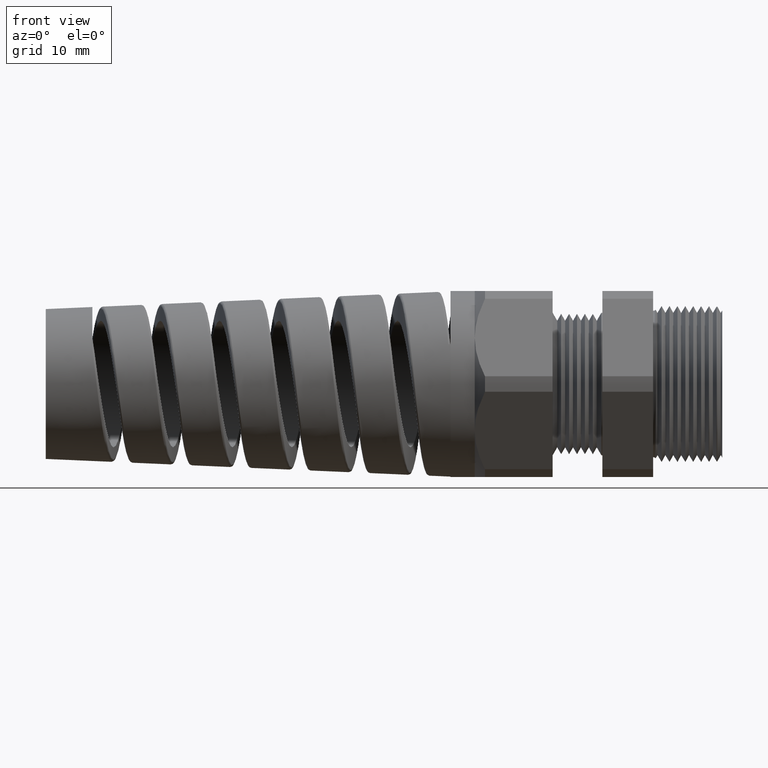
[diagram: clean part render]
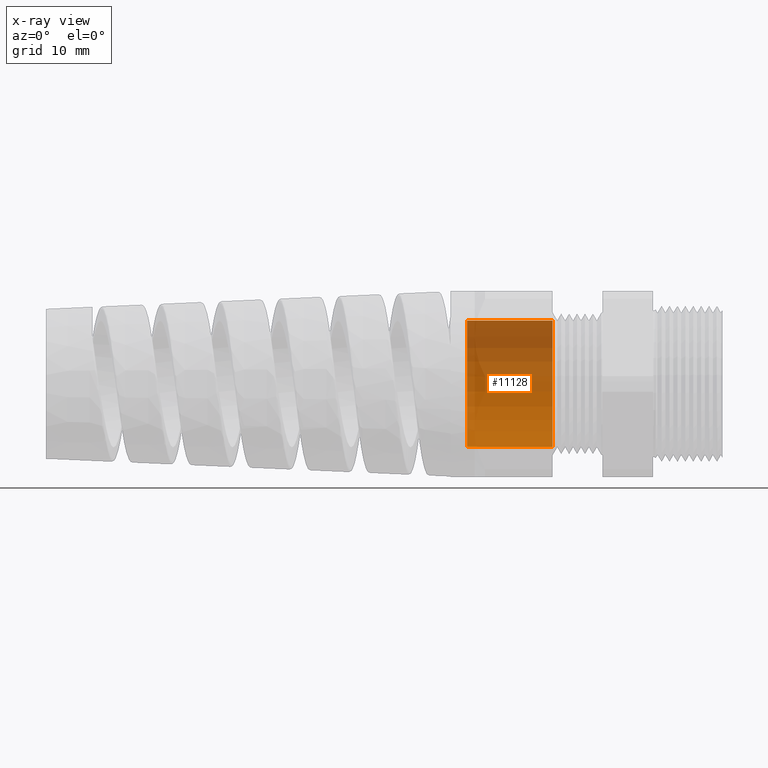
[diagram: x-ray — body ghosted, one internal face saturated and labeled with its STEP entity id]
A machine part, front view, then the same camera in x-ray: the body is ghosted and one INTERNAL B-rep face — a face not visible from any outside direction — is saturated and labeled: STEP entity #11128.
In plain terms, the highlighted cylindrical surface (partial cylindrical patch) has radius 8.128 mm, axis along (1, 0, 0).
Its self-contained STEP definition (entity closure, byte-faithful):
#7919 = CYLINDRICAL_SURFACE ( 'NONE', #7920, 0.3200000000000000100 ) ;
#7920 = AXIS2_PLACEMENT_3D ( 'NONE', #7976, #7975, #7974 ) ;
#7921 = FACE_OUTER_BOUND ( 'NONE', #11132, .T. ) ;
#7922 = DIRECTION ( 'NONE',  ( 1.000000000000000000, 0.0000000000000000000, 0.0000000000000000000 ) ) ;
#7923 = VECTOR ( 'NONE', #7922, 39.37007874015748100 ) ;
#7924 = CARTESIAN_POINT ( 'NONE',  ( 0.09602717987635048200, 3.918869757271530800E-017, 0.3200000000000000100 ) ) ;
#7925 = LINE ( 'NONE', #7924, #7923 ) ;
#7946 = CARTESIAN_POINT ( 'NONE',  ( -1.250000000000000200, 3.918869757271529600E-017, 0.3199999999999999500 ) ) ;
#7957 = CARTESIAN_POINT ( 'NONE',  ( -1.250000000000000200, 0.0000000000000000000, -0.3199999999999999500 ) ) ;
#7964 = CARTESIAN_POINT ( 'NONE',  ( -0.8175590551181102200, 3.918869757271530800E-017, 0.3200000000000000100 ) ) ;
#7965 = DIRECTION ( 'NONE',  ( 0.0000000000000000000, 0.0000000000000000000, -1.000000000000000000 ) ) ;
#7966 = DIRECTION ( 'NONE',  ( 1.000000000000000000, 0.0000000000000000000, 0.0000000000000000000 ) ) ;
#7967 = CARTESIAN_POINT ( 'NONE',  ( -0.8175590551181102200, 0.0000000000000000000, 0.0000000000000000000 ) ) ;
#7968 = AXIS2_PLACEMENT_3D ( 'NONE', #7967, #7966, #7965 ) ;
#7969 = CIRCLE ( 'NONE', #7968, 0.3200000000000000100 ) ;
#7974 = DIRECTION ( 'NONE',  ( 0.0000000000000000000, 0.0000000000000000000, -1.000000000000000000 ) ) ;
#7975 = DIRECTION ( 'NONE',  ( 1.000000000000000000, 0.0000000000000000000, 0.0000000000000000000 ) ) ;
#7976 = CARTESIAN_POINT ( 'NONE',  ( 0.09602717987635048200, 0.0000000000000000000, 0.0000000000000000000 ) ) ;
#8007 = DIRECTION ( 'NONE',  ( 0.0000000000000000000, 0.0000000000000000000, -1.000000000000000000 ) ) ;
#8008 = DIRECTION ( 'NONE',  ( 1.000000000000000000, 0.0000000000000000000, 0.0000000000000000000 ) ) ;
#8009 = CARTESIAN_POINT ( 'NONE',  ( -1.250000000000000200, 0.0000000000000000000, 0.0000000000000000000 ) ) ;
#8010 = AXIS2_PLACEMENT_3D ( 'NONE', #8009, #8008, #8007 ) ;
#8011 = CIRCLE ( 'NONE', #8010, 0.3199999999999999500 ) ;
#8019 = CARTESIAN_POINT ( 'NONE',  ( -0.8175590551181102200, 0.0000000000000000000, -0.3200000000000000100 ) ) ;
#8020 = DIRECTION ( 'NONE',  ( 1.000000000000000000, 0.0000000000000000000, 0.0000000000000000000 ) ) ;
#8021 = VECTOR ( 'NONE', #8020, 39.37007874015748100 ) ;
#8022 = CARTESIAN_POINT ( 'NONE',  ( 0.09602717987635048200, 0.0000000000000000000, -0.3200000000000000100 ) ) ;
#8023 = LINE ( 'NONE', #8022, #8021 ) ;
#11127 = EDGE_CURVE ( 'NONE', #11145, #11135, #7925, .T. ) ;
#11128 = ADVANCED_FACE ( 'NONE', ( #7921 ), #7919, .T. ) ;
#11131 = ORIENTED_EDGE ( 'NONE', *, *, #11127, .T. ) ;
#11132 = EDGE_LOOP ( 'NONE', ( #11134, #11131, #11137, #11168 ) ) ;
#11133 = EDGE_CURVE ( 'NONE', #11177, #11135, #7969, .T. ) ;
#11134 = ORIENTED_EDGE ( 'NONE', *, *, #11148, .T. ) ;
#11135 = VERTEX_POINT ( 'NONE', #7964 ) ;
#11137 = ORIENTED_EDGE ( 'NONE', *, *, #11133, .F. ) ;
#11138 = VERTEX_POINT ( 'NONE', #7957 ) ;
#11145 = VERTEX_POINT ( 'NONE', #7946 ) ;
#11148 = EDGE_CURVE ( 'NONE', #11138, #11145, #8011, .T. ) ;
#11168 = ORIENTED_EDGE ( 'NONE', *, *, #11171, .F. ) ;
#11171 = EDGE_CURVE ( 'NONE', #11138, #11177, #8023, .T. ) ;
#11177 = VERTEX_POINT ( 'NONE', #8019 ) ;